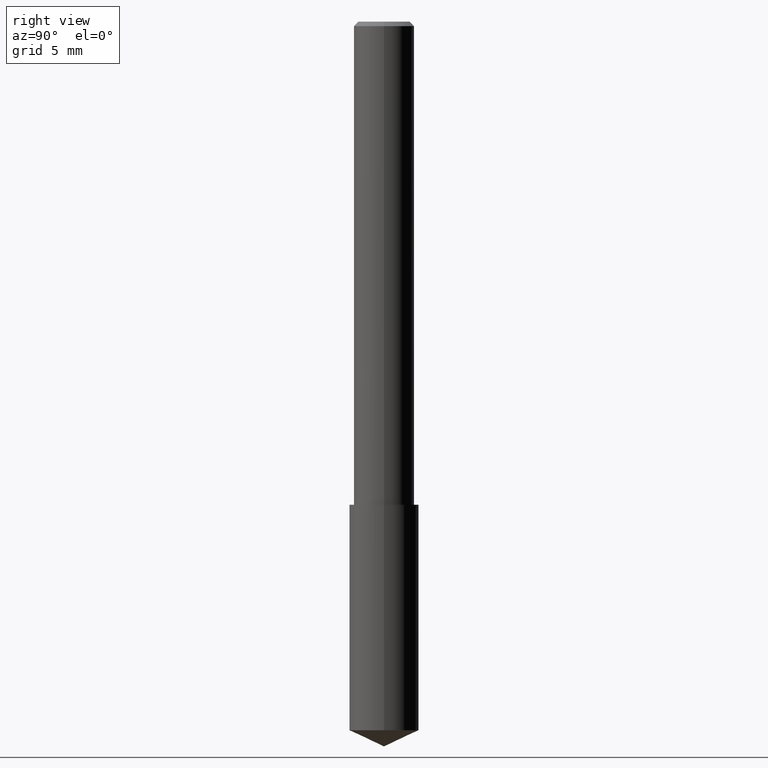
[diagram: clean part render]
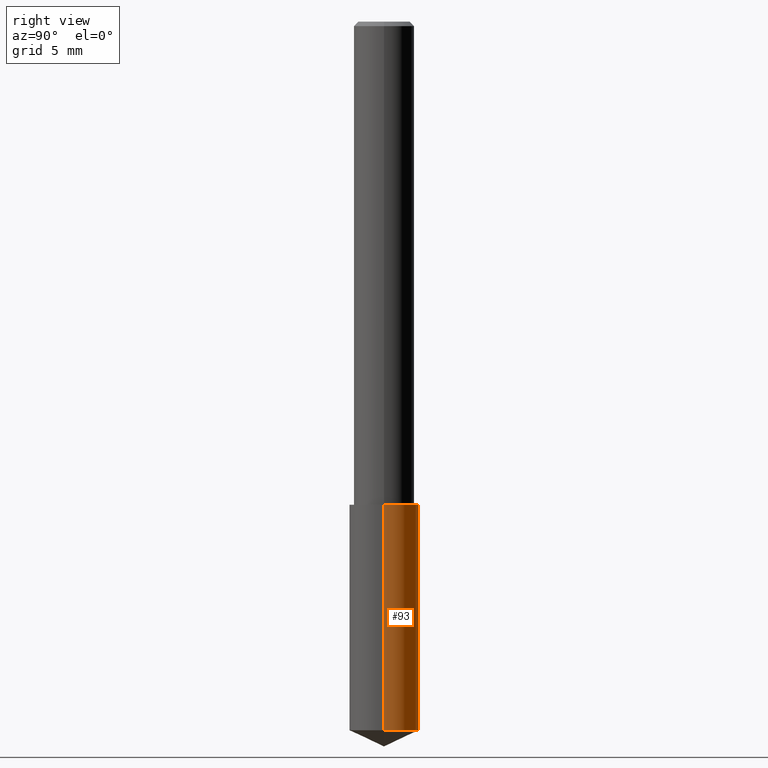
[diagram: same view with one face highlighted and labeled with its STEP entity id]
A machine part, right view. The second image highlights one B-rep face of the part: STEP entity #93.
In plain terms, the highlighted cylindrical surface (edge-blend (fillet) strip) has radius 1.8288 mm, axis along (-0, 0, 1).
Its self-contained STEP definition (entity closure, byte-faithful):
#4 = CARTESIAN_POINT ( 'NONE',  ( -0.07199999999999999456, -2.979890569095874178E-15, -1.000000000000000222 ) ) ;
#9 = LINE ( 'NONE', #42, #101 ) ;
#19 = CARTESIAN_POINT ( 'NONE',  ( -0.07199999999999999456, -3.794149142288778637E-15, -1.000000000000000222 ) ) ;
#22 = CARTESIAN_POINT ( 'NONE',  ( -0.07200000000000000844, -4.608407715481682307E-15, -1.466425848612840088 ) ) ;
#24 = ORIENTED_EDGE ( 'NONE', *, *, #143, .F. ) ;
#25 = CARTESIAN_POINT ( 'NONE',  ( 3.586098669366267653E-29, -5.119998485228954106E-15, -1.466425848612840088 ) ) ;
#28 = EDGE_CURVE ( 'NONE', #319, #100, #242, .T. ) ;
#35 = VECTOR ( 'NONE', #160, 39.37007874015748143 ) ;
#42 = CARTESIAN_POINT ( 'NONE',  ( 0.07199999999999999456, -3.994254651636557938E-15, -1.000000000000000222 ) ) ;
#47 = EDGE_LOOP ( 'NONE', ( #294, #121, #24, #207 ) ) ;
#74 = EDGE_CURVE ( 'NONE', #100, #204, #190, .T. ) ;
#81 = DIRECTION ( 'NONE',  ( 1.000000000000000000, -6.982962677686265133E-15, 0.000000000000000000 ) ) ;
#85 = CARTESIAN_POINT ( 'NONE',  ( 0.07199999999999999456, -3.994254651636557149E-15, -1.000000000000000222 ) ) ;
#93 = ADVANCED_FACE ( 'NONE', ( #261 ), #117, .T. ) ;
#100 = VERTEX_POINT ( 'NONE', #22 ) ;
#101 = VECTOR ( 'NONE', #105, 39.37007874015748143 ) ;
#105 = DIRECTION ( 'NONE',  ( -2.445468806185136877E-29, 3.491481338843145188E-15, 1.000000000000000000 ) ) ;
#117 = CYLINDRICAL_SURFACE ( 'NONE', #307, 0.07199999999999999456 ) ;
#121 = ORIENTED_EDGE ( 'NONE', *, *, #74, .T. ) ;
#123 = DIRECTION ( 'NONE',  ( 1.000000000000000000, -6.982962677686264344E-15, 0.000000000000000000 ) ) ;
#125 = AXIS2_PLACEMENT_3D ( 'NONE', #246, #136, #81 ) ;
#136 = DIRECTION ( 'NONE',  ( -2.445468806185136597E-29, 3.491481338843145583E-15, 1.000000000000000000 ) ) ;
#143 = EDGE_CURVE ( 'NONE', #289, #204, #256, .T. ) ;
#152 = DIRECTION ( 'NONE',  ( -2.445468806185136597E-29, 3.491481338843145583E-15, 1.000000000000000000 ) ) ;
#160 = DIRECTION ( 'NONE',  ( -2.445468806185136877E-29, 3.491481338843145188E-15, 1.000000000000000000 ) ) ;
#167 = EDGE_CURVE ( 'NONE', #319, #289, #9, .T. ) ;
#176 = AXIS2_PLACEMENT_3D ( 'NONE', #25, #152, #123 ) ;
#190 = LINE ( 'NONE', #4, #35 ) ;
#204 = VERTEX_POINT ( 'NONE', #19 ) ;
#206 = DIRECTION ( 'NONE',  ( -2.445468806185136597E-29, 3.491481338843145583E-15, 1.000000000000000000 ) ) ;
#207 = ORIENTED_EDGE ( 'NONE', *, *, #167, .F. ) ;
#235 = CARTESIAN_POINT ( 'NONE',  ( 2.445468806185137438E-29, -3.491481338843146371E-15, -1.000000000000000222 ) ) ;
#242 = CIRCLE ( 'NONE', #176, 0.07200000000000000844 ) ;
#245 = CARTESIAN_POINT ( 'NONE',  ( 0.07200000000000000844, -5.622771798022365278E-15, -1.466425848612840088 ) ) ;
#246 = CARTESIAN_POINT ( 'NONE',  ( 2.445468806185136877E-29, -3.491481338843145977E-15, -1.000000000000000222 ) ) ;
#256 = CIRCLE ( 'NONE', #125, 0.07199999999999999456 ) ;
#261 = FACE_OUTER_BOUND ( 'NONE', #47, .T. ) ;
#285 = DIRECTION ( 'NONE',  ( 1.000000000000000000, -6.982962677686265133E-15, 0.000000000000000000 ) ) ;
#289 = VERTEX_POINT ( 'NONE', #85 ) ;
#294 = ORIENTED_EDGE ( 'NONE', *, *, #28, .T. ) ;
#307 = AXIS2_PLACEMENT_3D ( 'NONE', #235, #206, #285 ) ;
#319 = VERTEX_POINT ( 'NONE', #245 ) ;